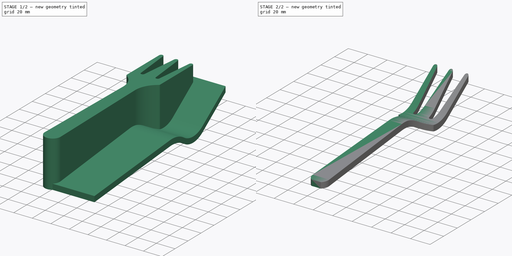
[diagram: build sequence overview — one tinted view per stage of 2, left to right]
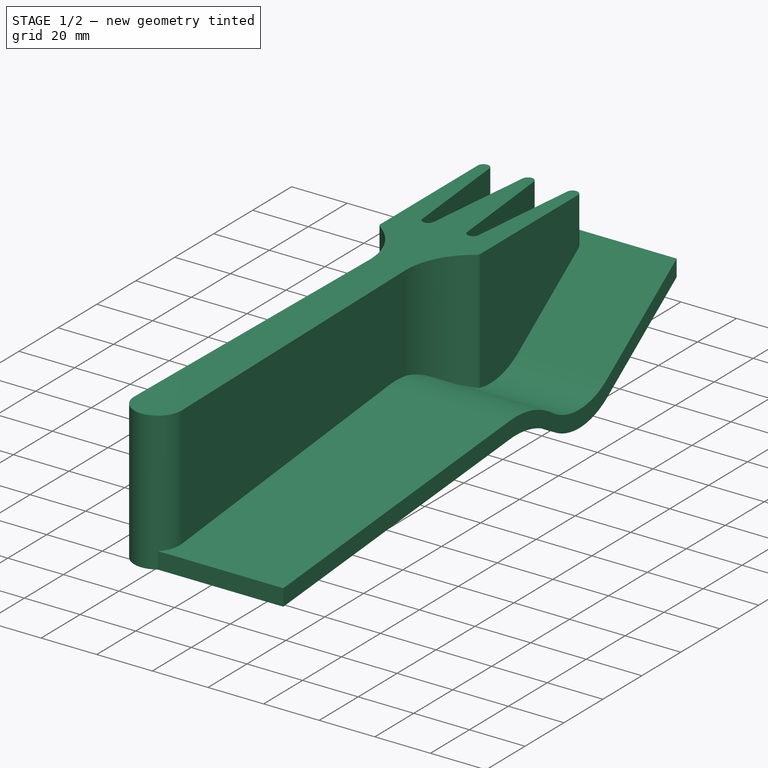
[diagram: stage 1 of 2 — iso view after this stage's code; geometry added in this stage tinted green]
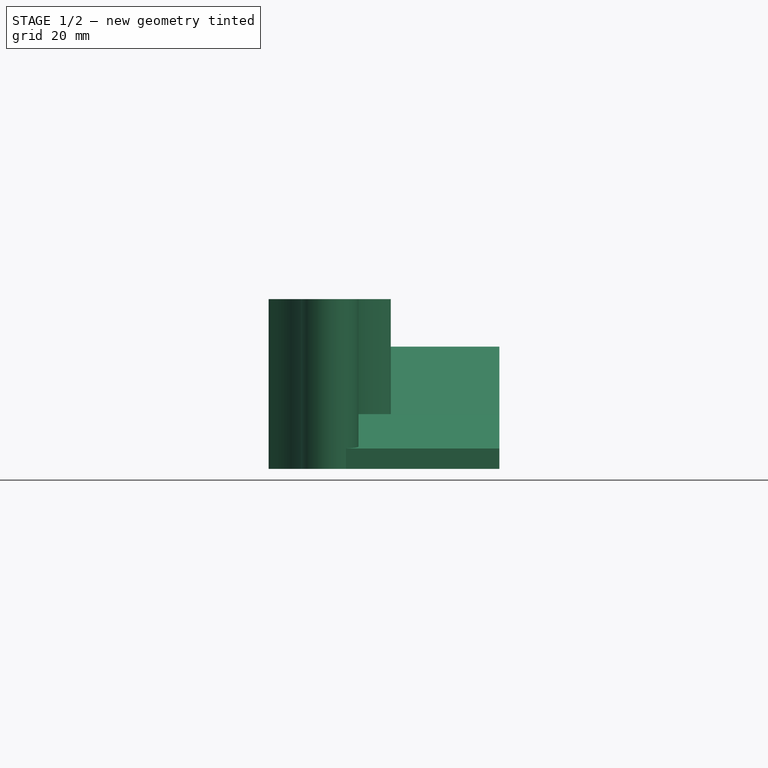
[diagram: stage 1 of 2 — front view after this stage's code; geometry added in this stage tinted green]
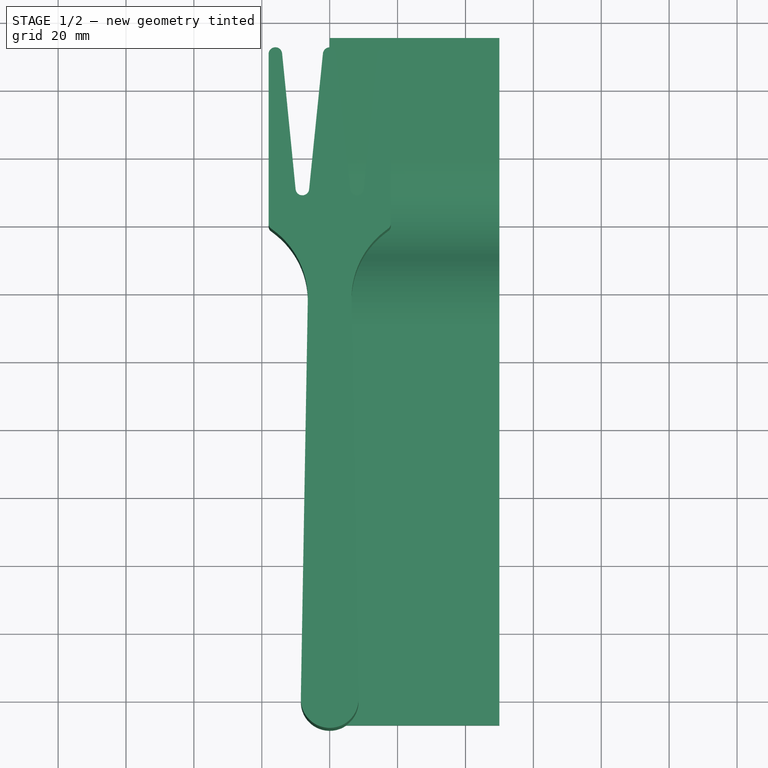
[diagram: stage 1 of 2 — top view after this stage's code; geometry added in this stage tinted green]
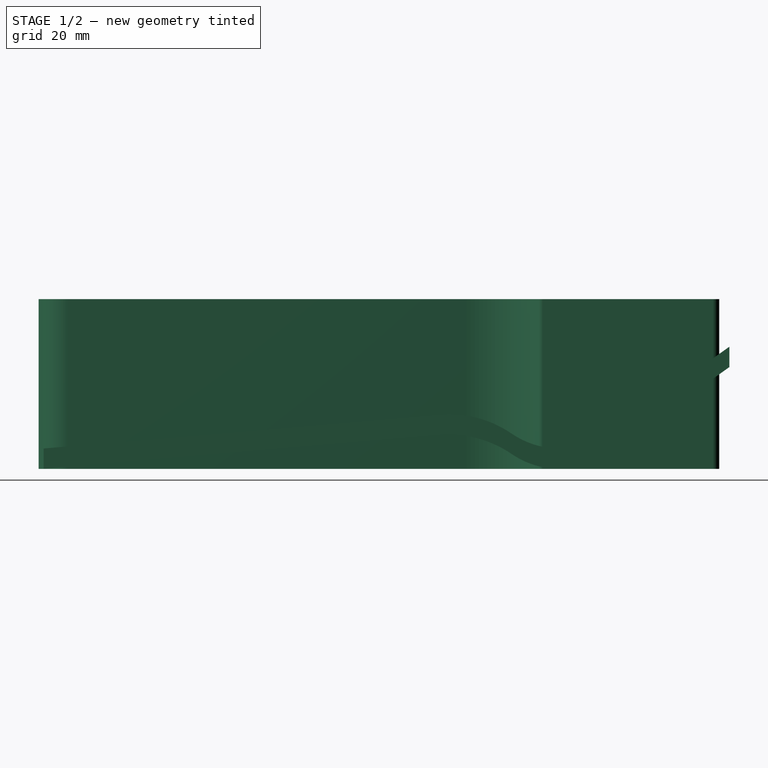
[diagram: stage 1 of 2 — right view after this stage's code; geometry added in this stage tinted green]
FCSTD DOCUMENT  (FreeCAD 0.20R29603 (Git))
Label: myFork
License: All rights reserved
LicenseURL: http://en.wikipedia.org/wiki/All_rights_reserved
objects: Sketcher::SketchObject×2, PartDesign::Pad×2, PartDesign::Body×2, Part::MultiCommon×1
note: 9 computed .brp shape members not serialized (recipe doc carries the construction recipe); baked Part::Feature solids carry a one-line shape summary decoded from their .brp

FEATURE [Sketcher::SketchObject] Sketch
  FullyConstrained = true
  MapMode = 5
  Placement = pos=(0,0,0) rot=(0.57735,0.57735,0.57735;2.0944rad)
  Support = -> [YZ_Plane001]
  sketch-geometry (12):
    g0: LineSegment StartX=-7 StartY=0 StartZ=0 EndX=109.441 EndY=10 EndZ=0
    g1: ArcOfCircle CenterX=112.265 CenterY=-22.879 CenterZ=0 NormalX=0 NormalY=0 NormalZ=1 AngleXU=0 Radius=33 StartAngle=0.971087 EndAngle=1.65647
    g2: LineSegment StartX=159.534 StartY=4.65892 StartZ=0 EndX=195 EndY=30 EndZ=0
    g3: ArcOfCircle CenterX=145 CenterY=25 CenterZ=0 NormalX=0 NormalY=0 NormalZ=1 AngleXU=0 Radius=25 StartAngle=4.11268 EndAngle=4.71239
    g4: ArcOfCircle CenterX=145 CenterY=25 CenterZ=0 NormalX=0 NormalY=0 NormalZ=1 AngleXU=0 Radius=25 StartAngle=4.71239 EndAngle=5.33279
    g5: LineSegment StartX=-7 StartY=6 StartZ=0 EndX=109.44 EndY=16.0005 EndZ=0
    g6: ArcOfCircle CenterX=112.264 CenterY=-16.8784 CenterZ=0 NormalX=0 NormalY=0 NormalZ=1 AngleXU=0 Radius=33 StartAngle=0.97107 EndAngle=1.65647
    g7: LineSegment StartX=159.534 StartY=10.6589 StartZ=0 EndX=195 EndY=36 EndZ=0
    g8: ArcOfCircle CenterX=145 CenterY=31 CenterZ=0 NormalX=0 NormalY=0 NormalZ=1 AngleXU=0 Radius=25 StartAngle=4.11266 EndAngle=4.71239
    g9: ArcOfCircle CenterX=145 CenterY=31 CenterZ=0 NormalX=0 NormalY=0 NormalZ=1 AngleXU=0 Radius=25 StartAngle=4.71239 EndAngle=5.33279
    g10: LineSegment StartX=-7 StartY=6 StartZ=0 EndX=-7 EndY=0 EndZ=0
    g11: LineSegment StartX=195 StartY=30 StartZ=0 EndX=195 EndY=36 EndZ=0
  constraints (34):
    c: Tangent(g1,g0) = 1.5708
    c: Coincident(g4,g3)
    c: Coincident(g4,g3)
    c: Tangent(g3,g1) = 1.5708
    c: Tangent(g4,g2) = -1.5708
    c: Vertical(g3,g3)
    c: DistanceY(g3,g2) = 30
    c: Horizontal(g0,g3)
    c: Horizontal(g0,g-1)
    c: DistanceX(g0,g-1) = 7
    c: DistanceX(g-1,g2) = 195
    c: DistanceX(g3,g2) = 50
    c: DistanceY(g-1,g0) = 10
    c: Diameter(g3) = 50
    c: Diameter(g1) = 66
    c: Tangent(g6,g5) = 1.5708
    c: Coincident(g9,g8)
    c: Coincident(g9,g8)
    c: Tangent(g8,g6) = 1.5708
    c: Tangent(g9,g7) = -1.5708
    c: Vertical(g8,g8)
    c: DistanceY(g8,g7) = 30
    c: Horizontal(g5,g8)
    c: DistanceX(g8,g7) = 50
    c: Equal(g3,g8) = 50
    c: Equal(g1,g6) = 66
    c: Coincident(g10,g5)
    c: Coincident(g10,g0)
    c: Vertical(g10)
    c: Coincident(g11,g2)
    c: Coincident(g11,g7)
    c: Vertical(g11)
    c: DistanceY(g10,g10) = 6
    c: DistanceX(g5,g5) = 116.44
FEATURE [PartDesign::Pad] Pad001
  Direction = (1,-2e-16,3e-16)
  Length = 50
  Length2 = 10
  Placement = pos=(0,0,0) rot=(0.57735,0.57735,0.57735;2.0944rad)
  Profile = -> Sketch
  ReferenceAxis = -> Sketch [N_Axis]
  Type = 0
FEATURE [PartDesign::Body] Body001  label="forkYZ"
  Group = -> [Sketch,Pad001]
  Origin = -> Origin001
  Placement = pos=(-25,0,0) rot=(0,0,1;0rad)
  Tip = -> Pad001
FEATURE [Sketcher::SketchObject] Sketch003
  FullyConstrained = false
  sketch-geometry (22):
    g0: LineSegment StartX=18 StartY=190.02 StartZ=0 EndX=18 EndY=140.02 EndZ=0
    g1: LineSegment StartX=14.0098 StartY=190.218 StartZ=0 EndX=10.0402 EndY=150.208 EndZ=0
    g2: LineSegment StartX=6.06028 StartY=150.202 StartZ=0 EndX=1.98972 EndY=190.202 EndZ=0
    g3: ArcOfCircle CenterX=16.35 CenterY=140.02 CenterZ=0 NormalX=0 NormalY=0 NormalZ=1 AngleXU=0 Radius=1.65 StartAngle=5.37064 EndAngle=6.28319
    g4: LineSegment StartX=6.44913 StartY=117.568 StartZ=0 EndX=8.49871 EndY=0.148345 EndZ=0
    g5: ArcOfCircle CenterX=0 CenterY=0 CenterZ=0 NormalX=0 NormalY=0 NormalZ=1 AngleXU=0 Radius=8.5 StartAngle=4.71239 EndAngle=6.30064
    g6: ArcOfCircle CenterX=16 CenterY=190.02 CenterZ=0 NormalX=0 NormalY=0 NormalZ=1 AngleXU=0 Radius=2 StartAngle=0 EndAngle=3.0427
    g7: ArcOfCircle CenterX=8.05 CenterY=150.405 CenterZ=0 NormalX=0 NormalY=0 NormalZ=1 AngleXU=0 Radius=2 StartAngle=3.24301 EndAngle=6.1843
    g8: ArcOfCircle CenterX=0 CenterY=190 CenterZ=0 NormalX=0 NormalY=0 NormalZ=1 AngleXU=0 Radius=2 StartAngle=0.101415 EndAngle=1.5708
    g9: LineSegment StartX=17.3594 StartY=138.715 StartZ=0 EndX=16.1519 EndY=137.781 EndZ=0
    g10: ArcOfCircle CenterX=31.4453 CenterY=118.005 CenterZ=0 NormalX=0 NormalY=0 NormalZ=1 AngleXU=0 Radius=25 StartAngle=2.22905 EndAngle=3.15905
    g11: LineSegment StartX=-18 StartY=190.02 StartZ=0 EndX=-18 EndY=140.02 EndZ=0
    g12: LineSegment StartX=-14.0098 StartY=190.218 StartZ=0 EndX=-10.0402 EndY=150.208 EndZ=0
    g13: LineSegment StartX=-6.06028 StartY=150.202 StartZ=0 EndX=-1.98972 EndY=190.202 EndZ=0
    g14: ArcOfCircle CenterX=-16.35 CenterY=140.02 CenterZ=0 NormalX=0 NormalY=0 NormalZ=1 AngleXU=0 Radius=1.65 StartAngle=3.14159 EndAngle=4.05414
    g15: LineSegment StartX=-6.44913 StartY=117.568 StartZ=0 EndX=-8.49871 EndY=0.148345 EndZ=0
    g16: ArcOfCircle CenterX=0 CenterY=0 CenterZ=0 NormalX=0 NormalY=0 NormalZ=1 AngleXU=0 Radius=8.5 StartAngle=3.12414 EndAngle=4.71239
    g17: ArcOfCircle CenterX=-16 CenterY=190.02 CenterZ=0 NormalX=0 NormalY=0 NormalZ=1 AngleXU=0 Radius=2 StartAngle=0.0988898 EndAngle=3.14159
    g18: ArcOfCircle CenterX=-8.05 CenterY=150.405 CenterZ=0 NormalX=0 NormalY=0 NormalZ=1 AngleXU=0 Radius=2 StartAngle=3.24048 EndAngle=6.18177
    g19: ArcOfCircle CenterX=0 CenterY=190 CenterZ=0 NormalX=0 NormalY=0 NormalZ=1 AngleXU=0 Radius=2 StartAngle=1.5708 EndAngle=3.04018
    g20: LineSegment StartX=-17.3594 StartY=138.715 StartZ=0 EndX=-16.1519 EndY=137.781 EndZ=0
    g21: ArcOfCircle CenterX=-31.4453 CenterY=118.005 CenterZ=0 NormalX=0 NormalY=0 NormalZ=1 AngleXU=0 Radius=25 StartAngle=6.26573 EndAngle=7.19573
  constraints (48):
    c: Tangent(g3,g0) = 1.5708
    c: Tangent(g5,g4) = 1.5708
    c: Tangent(g6,g0) = 1.5708
    c: Tangent(g6,g1) = -1.5708
    c: Tangent(g8,g2) = -1.5708
    c: Equal(g2,g1)
    c: Tangent(g7,g1) = 1.5708
    c: Tangent(g7,g2) = 1.5708
    c: Diameter(g6) = 4
    c: Diameter(g8) = 4
    c: Diameter(g7) = 4
    c: Diameter(g5) = 17
    c: Tangent(g9,g3) = 1.5708
    c: Tangent(g10,g9) = -1.5708
    c: Tangent(g10,g4) = -1.5708
    c: Distance(g9,g7) = 15
    c: Diameter(g3) = 3.3
    c: Diameter(g10) = 50
    c: Vertical(g0)
    c: PointOnObject(g16,g-2)
    c: Tangent(g14,g11) = -1.5708
    c: Tangent(g16,g15) = -1.5708
    c: PointOnObject(g19,g-2)
    c: PointOnObject(g19,g-2)
    c: Tangent(g17,g11) = -1.5708
    c: Tangent(g17,g12) = 1.5708
    c: Tangent(g19,g13) = 1.5708
    c: Equal(g13,g12)
    c: Tangent(g18,g12) = -1.5708
    c: Tangent(g18,g13) = -1.5708
    c: Diameter(g17) = 4
    c: Diameter(g19) = 4
    c: Diameter(g18) = 4
    c: Coincident(g16,g-1)
    c: DistanceY(g11,g11) = 50
    c: DistanceY(g16,g19) = 190
    c: Diameter(g16) = 17
    c: Tangent(g20,g14) = -1.5708
    c: Tangent(g21,g20) = 1.5708
    c: Tangent(g21,g15) = 1.5708
    c: Distance(g20,g18) = 15
    c: Angle(g-1,g15) = 1.55334
    c: DistanceY(g13,g13) = 40
    c: Diameter(g14) = 3.3
    c: Diameter(g21) = 50
    c: Vertical(g11)
    c: DistanceX(g17,g19) = 16
    c: DistanceX(g18,g19) = 8.05
FEATURE [PartDesign::Pad] Pad
  Direction = (0,0,1)
  Length = 50
  Length2 = 10
  Profile = -> Sketch003
  Type = 0
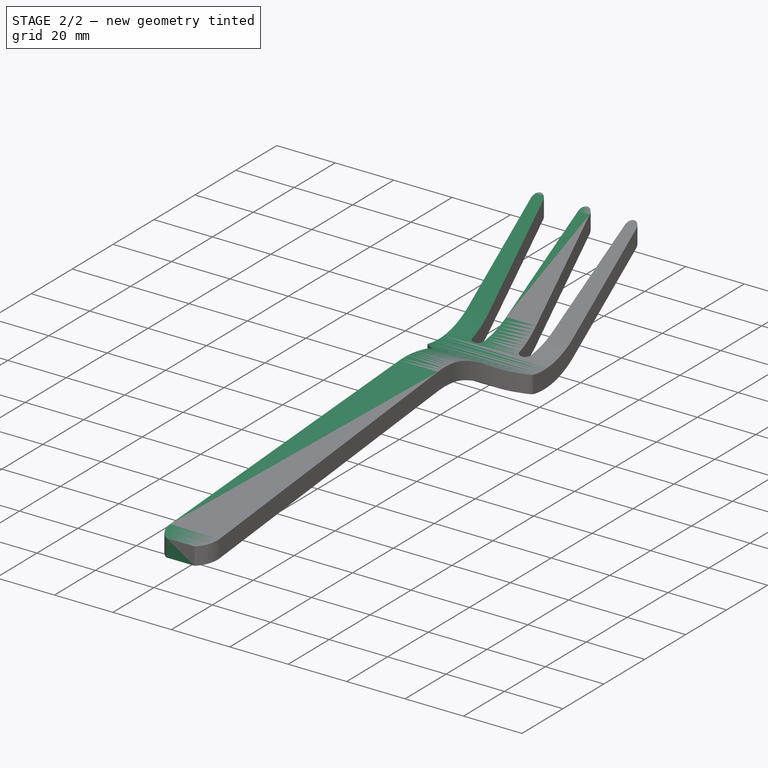
[diagram: stage 2 of 2 — iso view after this stage's code; geometry added in this stage tinted green]
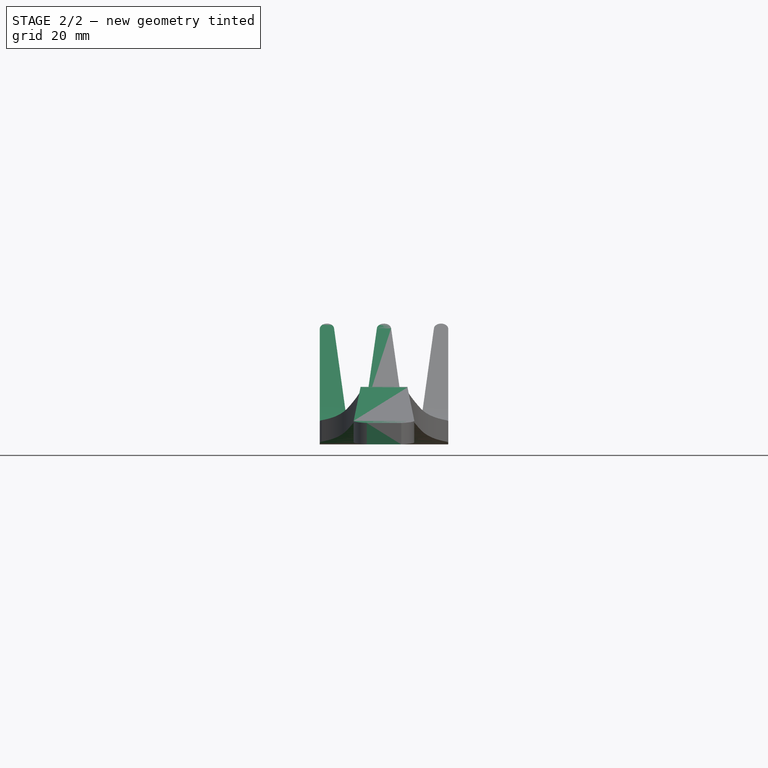
[diagram: stage 2 of 2 — front view after this stage's code; geometry added in this stage tinted green]
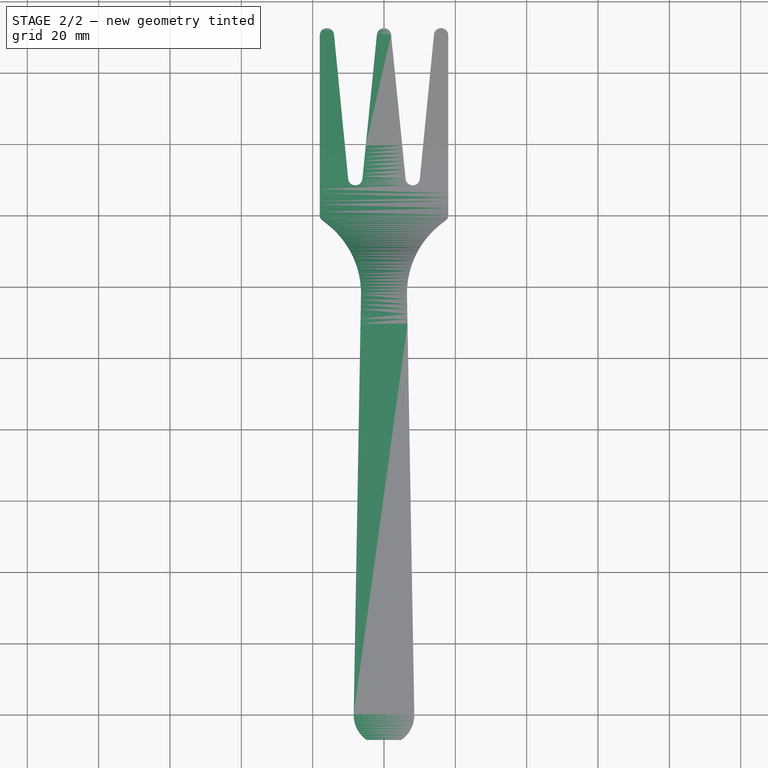
[diagram: stage 2 of 2 — top view after this stage's code; geometry added in this stage tinted green]
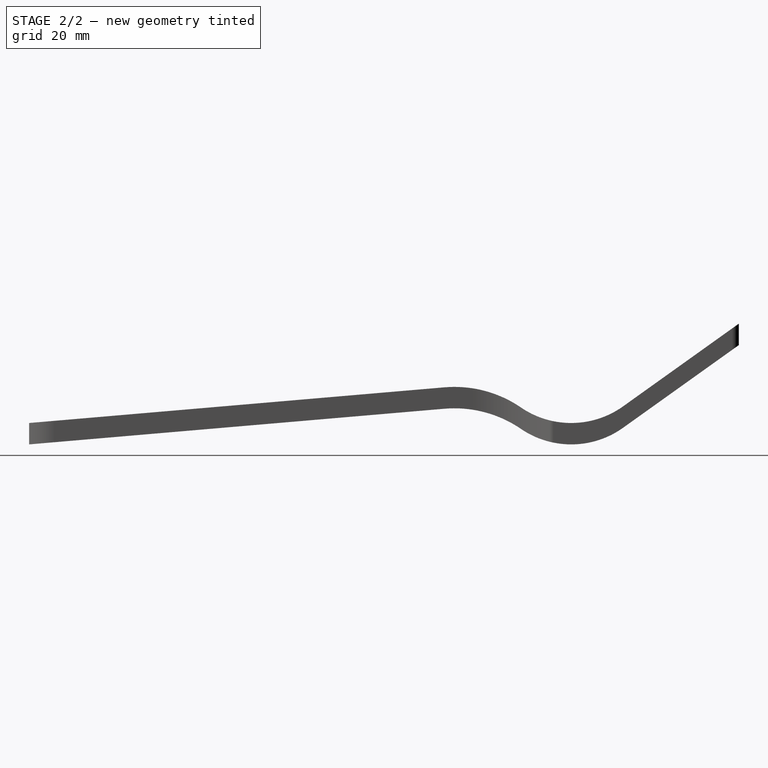
[diagram: stage 2 of 2 — right view after this stage's code; geometry added in this stage tinted green]
FEATURE [PartDesign::Body] Body  label="forkXY"
  Group = -> [Pad,Sketch003]
  Origin = -> Origin
  Placement = pos=(0,0,-8) rot=(0,0,1;0rad)
  Tip = -> Pad
FEATURE [Part::MultiCommon] Common
  Shapes = -> [Body,Body001]
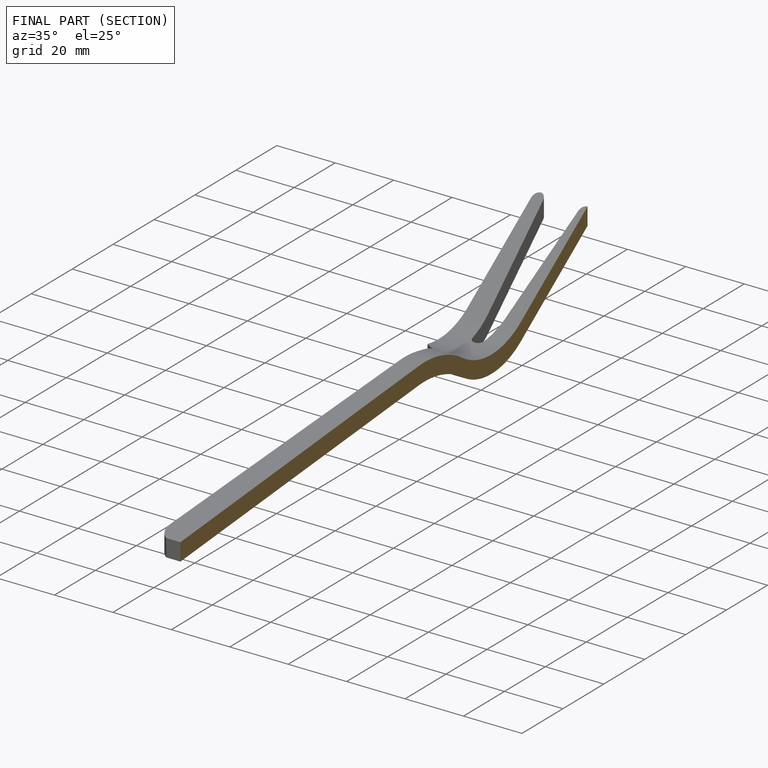
[diagram: finished part — half-section view (interior)]
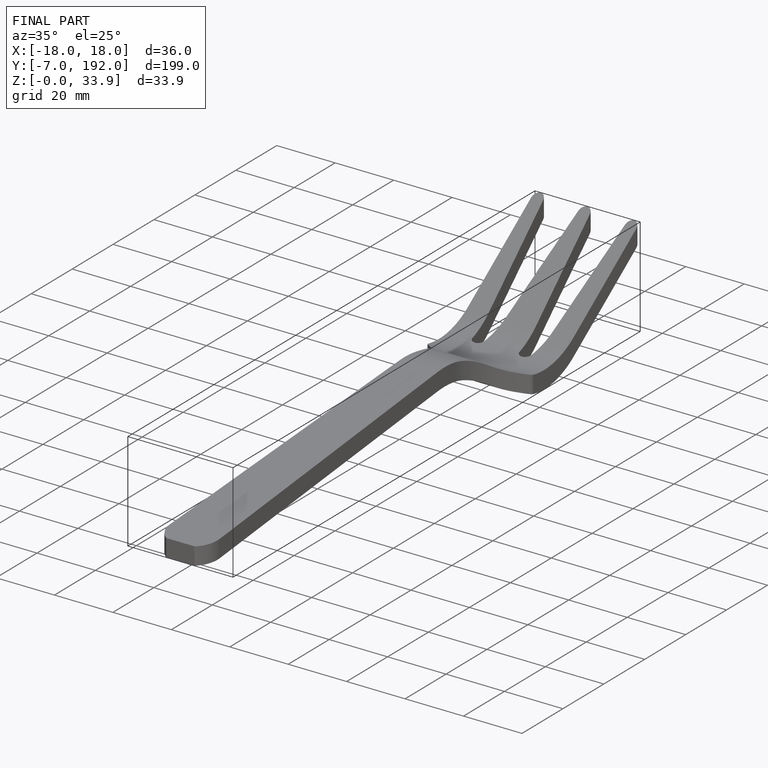
[diagram: finished part — iso view with bounding-box wireframe]
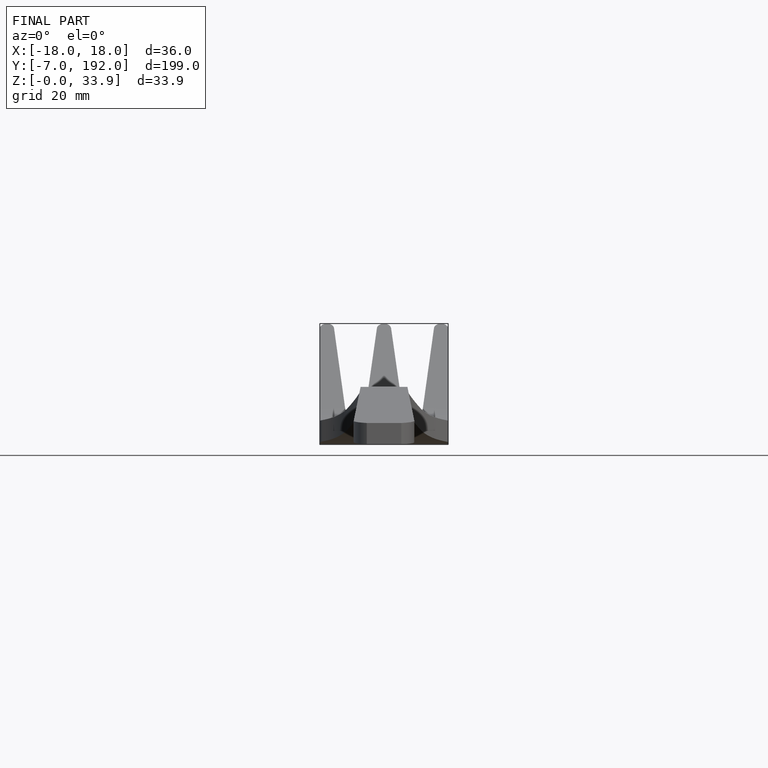
[diagram: finished part — front view with bounding-box wireframe]
